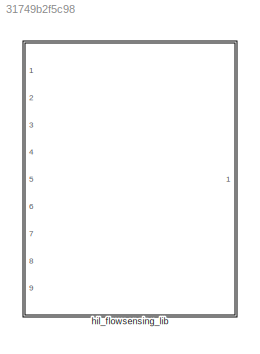
MODEL slx_31749b2f5c98
KIND library
CONFIG AbsTol = auto
CONFIG EnableMultiTasking = off
CONFIG FixedStep = auto
CONFIG MaxStep = auto
CONFIG MinStep = auto
CONFIG RelTol = 1e-3
CONFIG SampleTimeConstraint = Unconstrained
CONFIG Solver = VariableStepAuto
CONFIG SolverName = VariableStepAuto
CONFIG StartTime = 0.0
CONFIG StopTime = 10.0
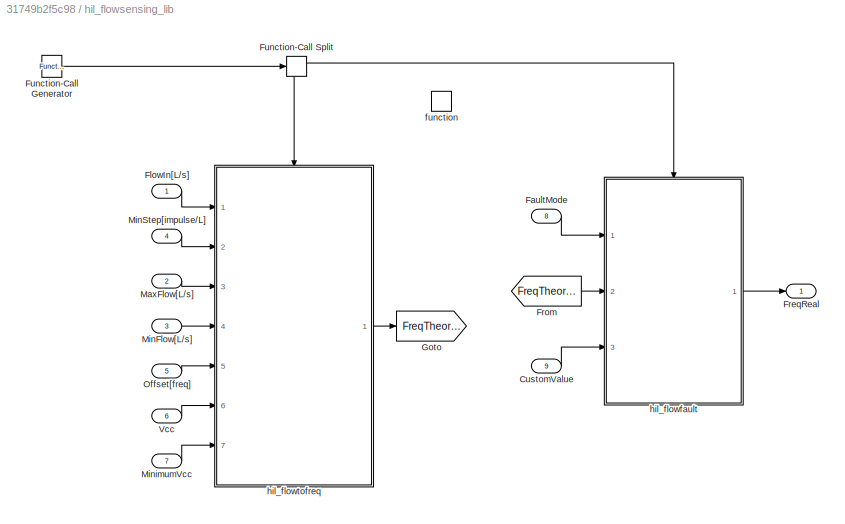
BLOCK [SubSystem] hil_flowsensing_lib
  Ports = [9, 1, 0, 1]
  RTWFcnName = hil_flowsensing_lib
  RTWFcnNameOpts = User specified
  RTWSystemCode = Reusable function
  RequestExecContextInheritance = off
  TreatAsAtomicUnit = on
BLOCK [Inport] hil_flowsensing_lib/CustomValue
  IconDisplay = Port number
  Port = 9
BLOCK [Inport] hil_flowsensing_lib/FaultMode
  IconDisplay = Port number
  Port = 8
BLOCK [Inport] hil_flowsensing_lib/FlowIn[L//s]
  IconDisplay = Port number
BLOCK [Outport] hil_flowsensing_lib/FreqReal
  IconDisplay = Port number
BLOCK [From] hil_flowsensing_lib/From
  GotoTag = FreqTheoric
BLOCK [Reference] hil_flowsensing_lib/Function-Call Generator  REF=simulink/Ports &
Subsystems/Function-Call
Generator
  Ports = [0, 1]
  SourceBlock = simulink/Ports &\nSubsystems/Function-Call\nGenerator
  SourceProductBaseCode = SL
  SourceProductName = Simulink
  SourceType = Function-Call Generator
BLOCK [FunctionCallSplit] hil_flowsensing_lib/Function-Call Split
  NumOutputPorts = 2
  OutputPortLayout = default
  Ports = [1, 2]
BLOCK [Goto] hil_flowsensing_lib/Goto
  GotoTag = FreqTheoric
BLOCK [Inport] hil_flowsensing_lib/MaxFlow[L//s]
  IconDisplay = Port number
  Port = 2
BLOCK [Inport] hil_flowsensing_lib/MinFlow[L//s]
  IconDisplay = Port number
  Port = 3
BLOCK [Inport] hil_flowsensing_lib/MinStep[impulse//L]
  IconDisplay = Port number
  Port = 4
BLOCK [Inport] hil_flowsensing_lib/MinimumVcc
  IconDisplay = Port number
  Port = 7
BLOCK [Inport] hil_flowsensing_lib/Offset[freq]
  IconDisplay = Port number
  Port = 5
BLOCK [Inport] hil_flowsensing_lib/Vcc
  IconDisplay = Port number
  Port = 6
BLOCK [TriggerPort] hil_flowsensing_lib/function
  Ports = []
  StatesWhenEnabling = held
  TriggerType = function-call
  VariantControl = Variant
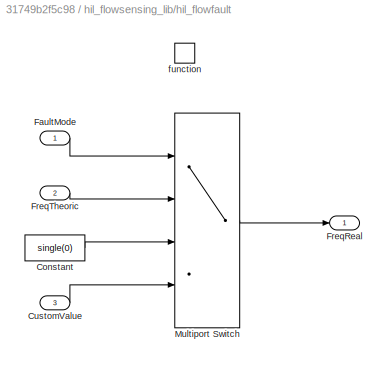
BLOCK [SubSystem] hil_flowsensing_lib/hil_flowfault
  Ports = [3, 1, 0, 1]
  RequestExecContextInheritance = off
  TreatAsAtomicUnit = on
BLOCK [Constant] hil_flowsensing_lib/hil_flowfault/Constant
  Value = single(0)
BLOCK [Inport] hil_flowsensing_lib/hil_flowfault/CustomValue
  IconDisplay = Port number
  Port = 3
BLOCK [Inport] hil_flowsensing_lib/hil_flowfault/FaultMode
  IconDisplay = Port number
BLOCK [Outport] hil_flowsensing_lib/hil_flowfault/FreqReal
  IconDisplay = Port number
BLOCK [Inport] hil_flowsensing_lib/hil_flowfault/FreqTheoric
  IconDisplay = Port number
  Port = 2
BLOCK [MultiPortSwitch] hil_flowsensing_lib/hil_flowfault/Multiport Switch
  DataPortOrder = Zero-based contiguous
  DiagnosticForDefault = None
  InputSameDT = off
  Ports = [4, 1]
  SaturateOnIntegerOverflow = off
  zeroidx = on
BLOCK [TriggerPort] hil_flowsensing_lib/hil_flowfault/function
  Ports = []
  StatesWhenEnabling = held
  TriggerType = function-call
  VariantControl = Variant
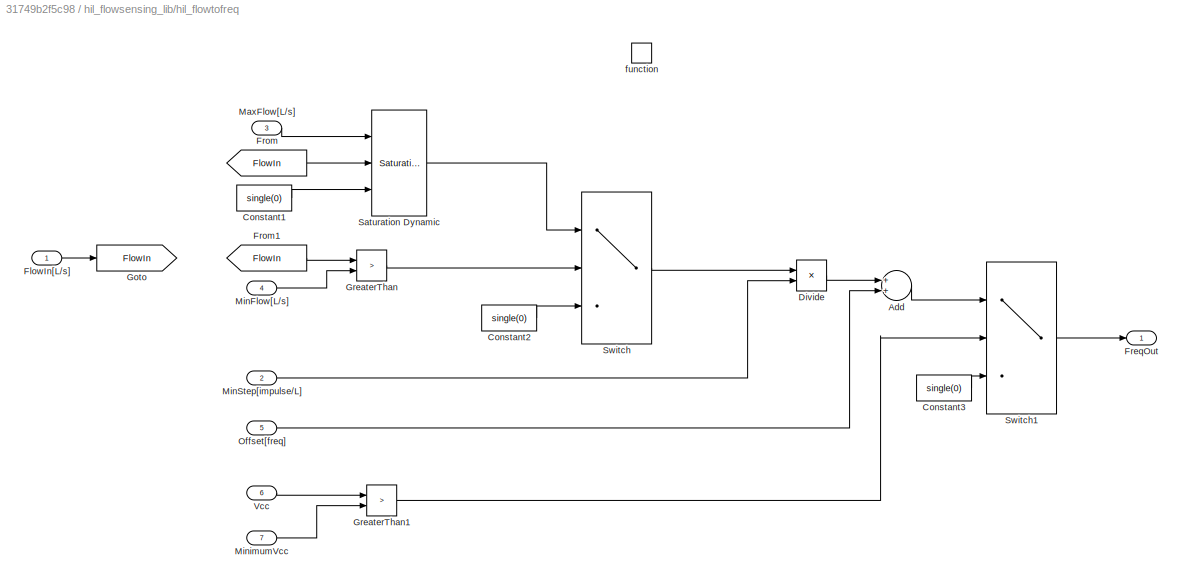
BLOCK [SubSystem] hil_flowsensing_lib/hil_flowtofreq
  Ports = [7, 1, 0, 1]
  RequestExecContextInheritance = off
  TreatAsAtomicUnit = on
BLOCK [Sum] hil_flowsensing_lib/hil_flowtofreq/Add
  InputSameDT = off
  OutDataTypeStr = Inherit: Inherit via internal rule
  Ports = [2, 1]
  SaturateOnIntegerOverflow = off
BLOCK [Constant] hil_flowsensing_lib/hil_flowtofreq/Constant1
  Value = single(0)
BLOCK [Constant] hil_flowsensing_lib/hil_flowtofreq/Constant2
  Value = single(0)
BLOCK [Constant] hil_flowsensing_lib/hil_flowtofreq/Constant3
  Value = single(0)
BLOCK [Product] hil_flowsensing_lib/hil_flowtofreq/Divide
  InputSameDT = off
  Inputs = **
  OutDataTypeStr = Inherit: Inherit via internal rule
  Ports = [2, 1]
  RndMeth = Floor
  SaturateOnIntegerOverflow = off
BLOCK [Inport] hil_flowsensing_lib/hil_flowtofreq/FlowIn[L//s]
  IconDisplay = Port number
BLOCK [Outport] hil_flowsensing_lib/hil_flowtofreq/FreqOut
  IconDisplay = Port number
BLOCK [From] hil_flowsensing_lib/hil_flowtofreq/From
  GotoTag = FlowIn
BLOCK [From] hil_flowsensing_lib/hil_flowtofreq/From1
  GotoTag = FlowIn
BLOCK [Goto] hil_flowsensing_lib/hil_flowtofreq/Goto
  GotoTag = FlowIn
BLOCK [RelationalOperator] hil_flowsensing_lib/hil_flowtofreq/GreaterThan
  InputSameDT = off
  Operator = >
  OutDataTypeStr = boolean
  Ports = [2, 1]
  RndMeth = Simplest
BLOCK [RelationalOperator] hil_flowsensing_lib/hil_flowtofreq/GreaterThan1
  InputSameDT = off
  Operator = >
  OutDataTypeStr = boolean
  Ports = [2, 1]
  RndMeth = Simplest
BLOCK [Inport] hil_flowsensing_lib/hil_flowtofreq/MaxFlow[L//s]
  IconDisplay = Port number
  Port = 3
BLOCK [Inport] hil_flowsensing_lib/hil_flowtofreq/MinFlow[L//s]
  IconDisplay = Port number
  Port = 4
BLOCK [Inport] hil_flowsensing_lib/hil_flowtofreq/MinStep[impulse//L]
  IconDisplay = Port number
  Port = 2
BLOCK [Inport] hil_flowsensing_lib/hil_flowtofreq/MinimumVcc
  IconDisplay = Port number
  Port = 7
BLOCK [Inport] hil_flowsensing_lib/hil_flowtofreq/Offset[freq]
  IconDisplay = Port number
  Port = 5
BLOCK [Reference] hil_flowsensing_lib/hil_flowtofreq/Saturation Dynamic  REF=simulink/Discontinuities/Saturation
Dynamic
  Ports = [3, 1]
  SourceBlock = simulink/Discontinuities/Saturation\nDynamic
  SourceProductBaseCode = SL
  SourceProductName = Simulink
  SourceType = Saturation Dynamic
BLOCK [Switch] hil_flowsensing_lib/hil_flowtofreq/Switch
  Criteria = u2 > Threshold
  InputSameDT = off
  SaturateOnIntegerOverflow = off
BLOCK [Switch] hil_flowsensing_lib/hil_flowtofreq/Switch1
  Criteria = u2 > Threshold
  InputSameDT = off
  SaturateOnIntegerOverflow = off
BLOCK [Inport] hil_flowsensing_lib/hil_flowtofreq/Vcc
  IconDisplay = Port number
  Port = 6
BLOCK [TriggerPort] hil_flowsensing_lib/hil_flowtofreq/function
  Ports = []
  StatesWhenEnabling = held
  TriggerType = function-call
  VariantControl = Variant
LINE hil_flowsensing_lib/CustomValue:1 -> hil_flowsensing_lib/hil_flowfault:3
LINE hil_flowsensing_lib/FaultMode:1 -> hil_flowsensing_lib/hil_flowfault:1
LINE hil_flowsensing_lib/FlowIn[L//s]:1 -> hil_flowsensing_lib/hil_flowtofreq:1
LINE hil_flowsensing_lib/From:1 -> hil_flowsensing_lib/hil_flowfault:2
LINE hil_flowsensing_lib/Function-Call Generator:1 -> hil_flowsensing_lib/Function-Call Split:1
LINE hil_flowsensing_lib/Function-Call Split:1 -> hil_flowsensing_lib/hil_flowfault:trigger
LINE hil_flowsensing_lib/Function-Call Split:2 -> hil_flowsensing_lib/hil_flowtofreq:trigger
LINE hil_flowsensing_lib/MaxFlow[L//s]:1 -> hil_flowsensing_lib/hil_flowtofreq:3
LINE hil_flowsensing_lib/MinFlow[L//s]:1 -> hil_flowsensing_lib/hil_flowtofreq:4
LINE hil_flowsensing_lib/MinStep[impulse//L]:1 -> hil_flowsensing_lib/hil_flowtofreq:2
LINE hil_flowsensing_lib/MinimumVcc:1 -> hil_flowsensing_lib/hil_flowtofreq:7
LINE hil_flowsensing_lib/Offset[freq]:1 -> hil_flowsensing_lib/hil_flowtofreq:5
LINE hil_flowsensing_lib/Vcc:1 -> hil_flowsensing_lib/hil_flowtofreq:6
LINE hil_flowsensing_lib/hil_flowfault/Constant:1 -> hil_flowsensing_lib/hil_flowfault/Multiport Switch:3
LINE hil_flowsensing_lib/hil_flowfault/CustomValue:1 -> hil_flowsensing_lib/hil_flowfault/Multiport Switch:4
LINE hil_flowsensing_lib/hil_flowfault/FaultMode:1 -> hil_flowsensing_lib/hil_flowfault/Multiport Switch:1
LINE hil_flowsensing_lib/hil_flowfault/FreqTheoric:1 -> hil_flowsensing_lib/hil_flowfault/Multiport Switch:2
LINE hil_flowsensing_lib/hil_flowfault/Multiport Switch:1 -> hil_flowsensing_lib/hil_flowfault/FreqReal:1
LINE hil_flowsensing_lib/hil_flowfault:1 -> hil_flowsensing_lib/FreqReal:1
LINE hil_flowsensing_lib/hil_flowtofreq/Add:1 -> hil_flowsensing_lib/hil_flowtofreq/Switch1:1
LINE hil_flowsensing_lib/hil_flowtofreq/Constant1:1 -> hil_flowsensing_lib/hil_flowtofreq/Saturation Dynamic:3
LINE hil_flowsensing_lib/hil_flowtofreq/Constant2:1 -> hil_flowsensing_lib/hil_flowtofreq/Switch:3
LINE hil_flowsensing_lib/hil_flowtofreq/Constant3:1 -> hil_flowsensing_lib/hil_flowtofreq/Switch1:3
LINE hil_flowsensing_lib/hil_flowtofreq/Divide:1 -> hil_flowsensing_lib/hil_flowtofreq/Add:1
LINE hil_flowsensing_lib/hil_flowtofreq/FlowIn[L//s]:1 -> hil_flowsensing_lib/hil_flowtofreq/Goto:1
LINE hil_flowsensing_lib/hil_flowtofreq/From1:1 -> hil_flowsensing_lib/hil_flowtofreq/GreaterThan:1
LINE hil_flowsensing_lib/hil_flowtofreq/From:1 -> hil_flowsensing_lib/hil_flowtofreq/Saturation Dynamic:2
LINE hil_flowsensing_lib/hil_flowtofreq/GreaterThan1:1 -> hil_flowsensing_lib/hil_flowtofreq/Switch1:2
LINE hil_flowsensing_lib/hil_flowtofreq/GreaterThan:1 -> hil_flowsensing_lib/hil_flowtofreq/Switch:2
LINE hil_flowsensing_lib/hil_flowtofreq/MaxFlow[L//s]:1 -> hil_flowsensing_lib/hil_flowtofreq/Saturation Dynamic:1
LINE hil_flowsensing_lib/hil_flowtofreq/MinFlow[L//s]:1 -> hil_flowsensing_lib/hil_flowtofreq/GreaterThan:2
LINE hil_flowsensing_lib/hil_flowtofreq/MinStep[impulse//L]:1 -> hil_flowsensing_lib/hil_flowtofreq/Divide:2
LINE hil_flowsensing_lib/hil_flowtofreq/MinimumVcc:1 -> hil_flowsensing_lib/hil_flowtofreq/GreaterThan1:2
LINE hil_flowsensing_lib/hil_flowtofreq/Offset[freq]:1 -> hil_flowsensing_lib/hil_flowtofreq/Add:2
LINE hil_flowsensing_lib/hil_flowtofreq/Saturation Dynamic:1 -> hil_flowsensing_lib/hil_flowtofreq/Switch:1
LINE hil_flowsensing_lib/hil_flowtofreq/Switch1:1 -> hil_flowsensing_lib/hil_flowtofreq/FreqOut:1
LINE hil_flowsensing_lib/hil_flowtofreq/Switch:1 -> hil_flowsensing_lib/hil_flowtofreq/Divide:1
LINE hil_flowsensing_lib/hil_flowtofreq/Vcc:1 -> hil_flowsensing_lib/hil_flowtofreq/GreaterThan1:1
LINE hil_flowsensing_lib/hil_flowtofreq:1 -> hil_flowsensing_lib/Goto:1
